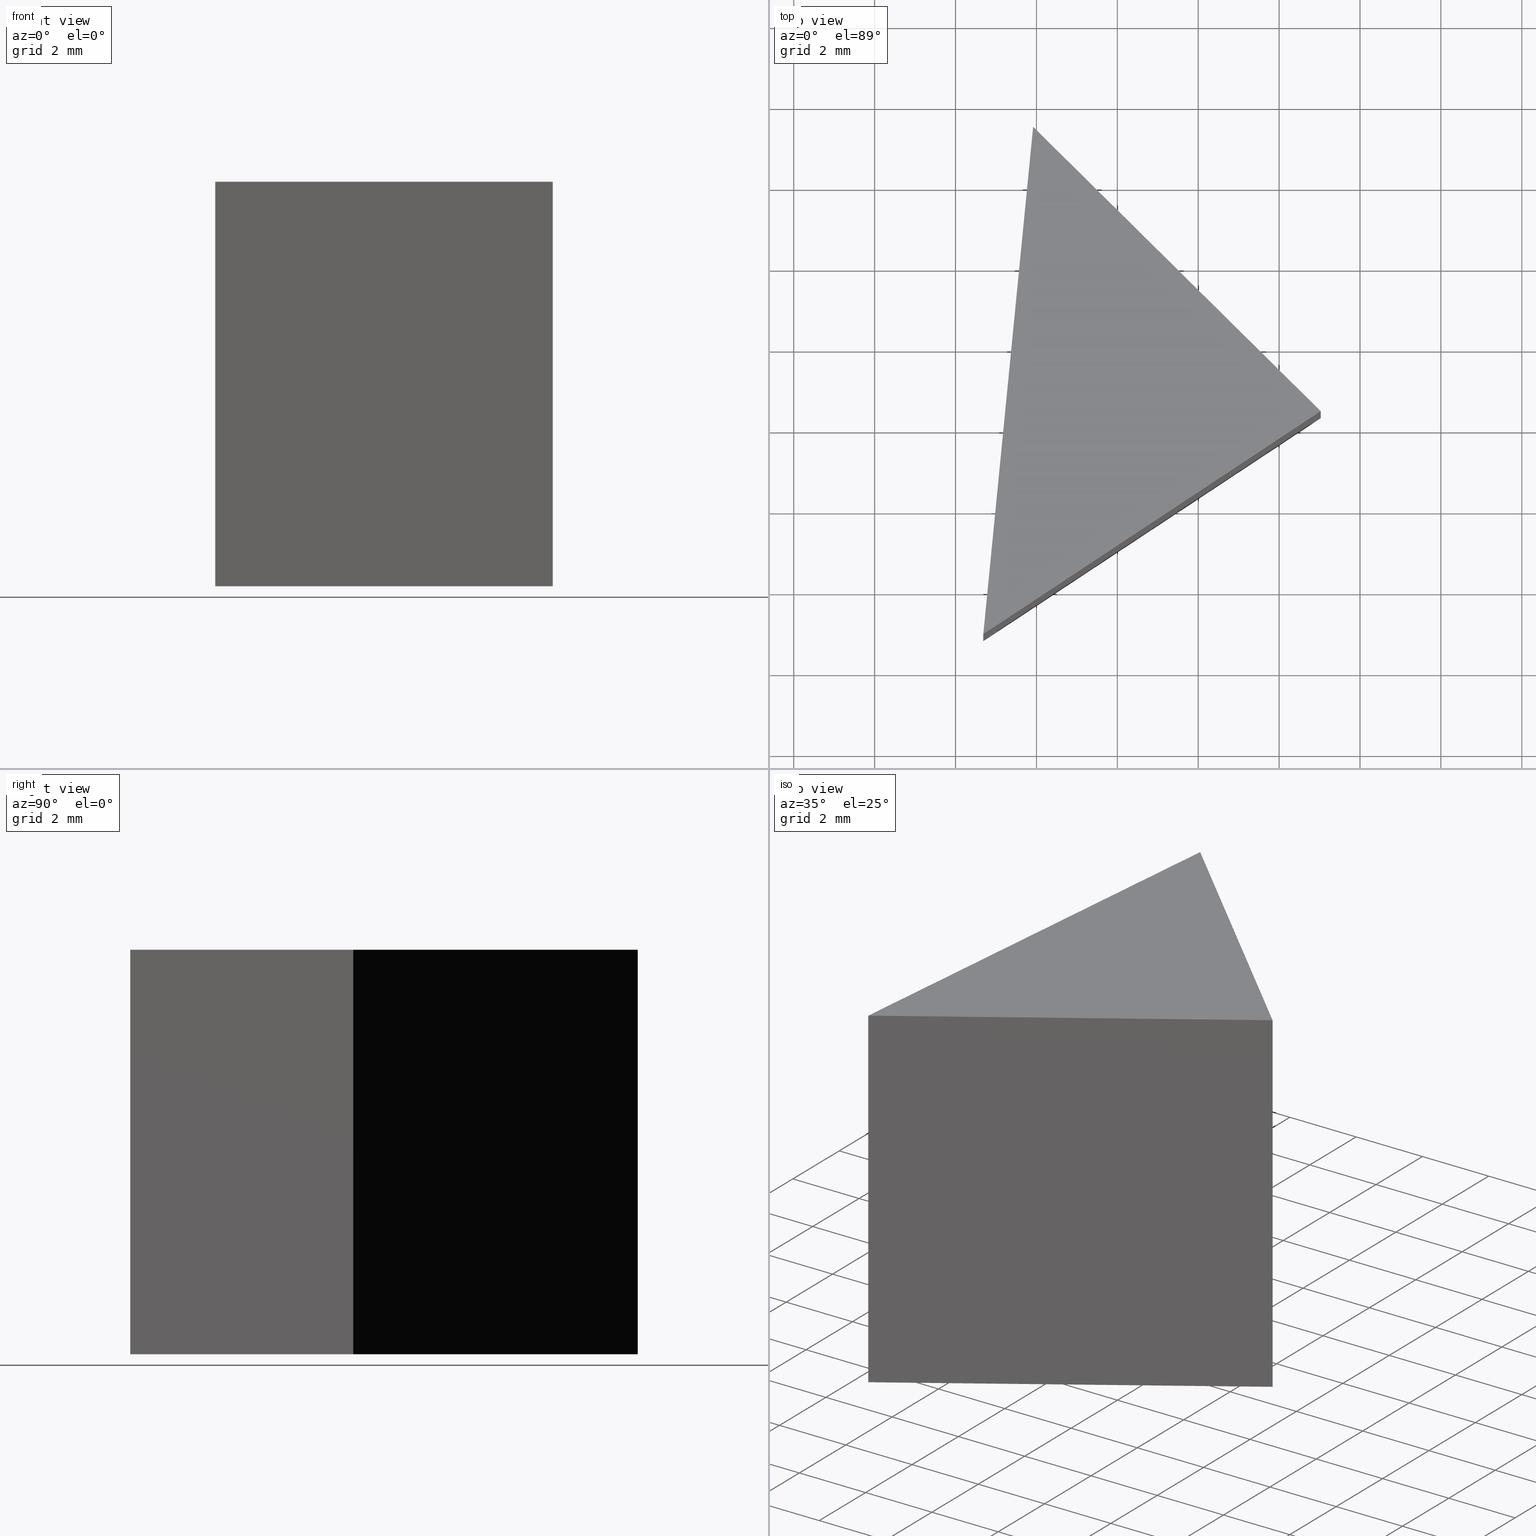
[diagram: canonical four-view strip — front | top / right | iso, engineering-drawing reading convention]
A machine part, canonical four-view strip (front | top / right | iso — engineering-drawing reading convention). The complete STEP part file that produces these views, byte-faithful:
ISO-10303-21;
HEADER;
FILE_DESCRIPTION (( 'STEP AP214' ),
    '1' );
FILE_NAME ('469001.STEP',
    '2019-08-23T02:08:35',
    ( 'user' ),
    ( '΢���й�' ),
    'SwSTEP 2.0',
    'SolidWorks 2016',
    '' );
FILE_SCHEMA (( 'AUTOMOTIVE_DESIGN' ));
ENDSEC;

DATA;
#1 = DIRECTION ( 'NONE',  ( 0.0000000000000000000, 0.0000000000000000000, 1.000000000000000000 ) ) ;
#2 = MECHANICAL_DESIGN_GEOMETRIC_PRESENTATION_REPRESENTATION (  '', ( #69 ), #75 ) ;
#3 = ORIENTED_EDGE ( 'NONE', *, *, #82, .T. ) ;
#4 = PRODUCT_DEFINITION ( 'δ֪', '', #72, #9 ) ;
#5 = EDGE_CURVE ( 'NONE', #114, #94, #169, .T. ) ;
#6 = CARTESIAN_POINT ( 'NONE',  ( 9.028570851696299500, 6.361486365058052400, 10.00000000000000000 ) ) ;
#7 = PLANE ( 'NONE',  #96 ) ;
#8 =( LENGTH_UNIT ( ) NAMED_UNIT ( * ) SI_UNIT ( .MILLI., .METRE. ) );
#9 = PRODUCT_DEFINITION_CONTEXT ( 'detailed design', #73, 'design' ) ;
#10 = CARTESIAN_POINT ( 'NONE',  ( 9.028570851696299500, 6.361486365058052400, 0.0000000000000000000 ) ) ;
#11 = DIRECTION ( 'NONE',  ( 0.09777970958415410600, 0.9952080829623716200, 0.0000000000000000000 ) ) ;
#12 = ORIENTED_EDGE ( 'NONE', *, *, #20, .F. ) ;
#13 = UNCERTAINTY_MEASURE_WITH_UNIT (LENGTH_MEASURE( 1.000000000000000100E-005 ), #80, 'distance_accuracy_value', 'NONE');
#14 = LINE ( 'NONE', #162, #147 ) ;
#15 = PRODUCT_RELATED_PRODUCT_CATEGORY ( 'part', '', ( #58 ) ) ;
#16 =( NAMED_UNIT ( * ) SI_UNIT ( $, .STERADIAN. ) SOLID_ANGLE_UNIT ( ) );
#17 = PRESENTATION_STYLE_ASSIGNMENT (( #122 ) ) ;
#18 =( NAMED_UNIT ( * ) PLANE_ANGLE_UNIT ( ) SI_UNIT ( $, .RADIAN. ) );
#19 = ORIENTED_EDGE ( 'NONE', *, *, #163, .T. ) ;
#20 = EDGE_CURVE ( 'NONE', #137, #47, #28, .T. ) ;
#21 = DIRECTION ( 'NONE',  ( -1.000000000000000000, 0.0000000000000000000, 0.0000000000000000000 ) ) ;
#22 = PRESENTATION_STYLE_ASSIGNMENT (( #88 ) ) ;
#23 = DIRECTION ( 'NONE',  ( 0.8342399877260263700, 0.5514015260034012000, -0.0000000000000000000 ) ) ;
#24 = CARTESIAN_POINT ( 'NONE',  ( 0.6861709744360347000, 0.8474711050240408800, 0.0000000000000000000 ) ) ;
#25 =( NAMED_UNIT ( * ) SI_UNIT ( $, .STERADIAN. ) SOLID_ANGLE_UNIT ( ) );
#26 = CARTESIAN_POINT ( 'NONE',  ( 9.028570851696299500, 6.361486365058052400, 10.00000000000000000 ) ) ;
#27 = EDGE_LOOP ( 'NONE', ( #31, #67, #12, #97 ) ) ;
#28 = LINE ( 'NONE', #118, #164 ) ;
#29 = ORIENTED_EDGE ( 'NONE', *, *, #82, .F. ) ;
#30 = FACE_OUTER_BOUND ( 'NONE', #161, .T. ) ;
#31 = ORIENTED_EDGE ( 'NONE', *, *, #5, .T. ) ;
#32 = PRESENTATION_LAYER_ASSIGNMENT (  '', '', ( #167 ) ) ;
#33 =( LENGTH_UNIT ( ) NAMED_UNIT ( * ) SI_UNIT ( .MILLI., .METRE. ) );
#34 = ORIENTED_EDGE ( 'NONE', *, *, #5, .F. ) ;
#35 = VECTOR ( 'NONE', #140, 1000.000000000000000 ) ;
#36 = PLANE ( 'NONE',  #111 ) ;
#37 = VECTOR ( 'NONE', #23, 1000.000000000000000 ) ;
#38 = CARTESIAN_POINT ( 'NONE',  ( 1.918842615621676000, 13.39368121511469800, 10.00000000000000000 ) ) ;
#39 = DIRECTION ( 'NONE',  ( -0.7109728236074625000, 0.7032194850056645600, 0.0000000000000000000 ) ) ;
#40 = CARTESIAN_POINT ( 'NONE',  ( 0.6861709744360347000, 0.8474711050240408800, 10.00000000000000000 ) ) ;
#41 = ORIENTED_EDGE ( 'NONE', *, *, #99, .F. ) ;
#42 = MECHANICAL_DESIGN_GEOMETRIC_PRESENTATION_REPRESENTATION (  '', ( #167 ), #120 ) ;
#43 = VECTOR ( 'NONE', #39, 999.9999999999998900 ) ;
#44 = ADVANCED_BREP_SHAPE_REPRESENTATION ( '469001', ( #107, #52 ), #133 ) ;
#45 = SURFACE_SIDE_STYLE ('',( #55 ) ) ;
#46 = AXIS2_PLACEMENT_3D ( 'NONE', #117, #125, #51 ) ;
#47 = VERTEX_POINT ( 'NONE', #62 ) ;
#48 = DIRECTION ( 'NONE',  ( -0.09777970958415410600, -0.9952080829623716200, -0.0000000000000000000 ) ) ;
#49 = DIRECTION ( 'NONE',  ( -0.0000000000000000000, -0.0000000000000000000, -1.000000000000000000 ) ) ;
#50 = ADVANCED_FACE ( 'NONE', ( #71 ), #7, .F. ) ;
#51 = DIRECTION ( 'NONE',  ( 0.7109728236074625000, -0.7032194850056645600, 0.0000000000000000000 ) ) ;
#52 = AXIS2_PLACEMENT_3D ( 'NONE', #105, #1, #83 ) ;
#53 = CARTESIAN_POINT ( 'NONE',  ( 1.918842615621676000, 13.39368121511469800, 0.0000000000000000000 ) ) ;
#54 = VECTOR ( 'NONE', #49, 1000.000000000000000 ) ;
#55 = SURFACE_STYLE_FILL_AREA ( #134 ) ;
#56 = SURFACE_STYLE_FILL_AREA ( #78 ) ;
#57 =( NAMED_UNIT ( * ) SI_UNIT ( $, .STERADIAN. ) SOLID_ANGLE_UNIT ( ) );
#58 = PRODUCT ( '469001', '469001', '', ( #151 ) ) ;
#59 = APPLICATION_CONTEXT ( 'automotive_design' ) ;
#60 = ORIENTED_EDGE ( 'NONE', *, *, #163, .F. ) ;
#61 = EDGE_LOOP ( 'NONE', ( #143, #34, #166 ) ) ;
#62 = CARTESIAN_POINT ( 'NONE',  ( 0.6861709744360347000, 0.8474711050240408800, 10.00000000000000000 ) ) ;
#63 = COLOUR_RGB ( '',1.000000000000000000, 1.000000000000000000, 1.000000000000000000 ) ;
#64 = ADVANCED_FACE ( 'NONE', ( #98 ), #124, .F. ) ;
#65 = CARTESIAN_POINT ( 'NONE',  ( 9.028570851696299500, 6.361486365058052400, 10.00000000000000000 ) ) ;
#66 = CARTESIAN_POINT ( 'NONE',  ( 0.0000000000000000000, 0.0000000000000000000, 0.0000000000000000000 ) ) ;
#67 = ORIENTED_EDGE ( 'NONE', *, *, #158, .F. ) ;
#68 = FILL_AREA_STYLE_COLOUR ( '', #89 ) ;
#69 = STYLED_ITEM ( 'NONE', ( #22 ), #107 ) ;
#70 = LINE ( 'NONE', #10, #35 ) ;
#71 = FACE_OUTER_BOUND ( 'NONE', #144, .T. ) ;
#72 = PRODUCT_DEFINITION_FORMATION_WITH_SPECIFIED_SOURCE ( '�κ�', '', #58, .NOT_KNOWN. ) ;
#73 = APPLICATION_CONTEXT ( 'automotive_design' ) ;
#74 = APPLICATION_PROTOCOL_DEFINITION ( 'draft international standard', 'automotive_design', 1998, #59 ) ;
#75 =( GEOMETRIC_REPRESENTATION_CONTEXT ( 3 ) GLOBAL_UNCERTAINTY_ASSIGNED_CONTEXT ( ( #153 ) ) GLOBAL_UNIT_ASSIGNED_CONTEXT ( ( #8, #103, #25 ) ) REPRESENTATION_CONTEXT ( 'NONE', 'WORKASPACE' ) );
#76 = DIRECTION ( 'NONE',  ( -0.09777970958415410600, -0.9952080829623716200, -0.0000000000000000000 ) ) ;
#77 = VECTOR ( 'NONE', #48, 999.9999999999998900 ) ;
#78 = FILL_AREA_STYLE ('',( #102 ) ) ;
#79 = CARTESIAN_POINT ( 'NONE',  ( 0.6861709744360347000, 0.8474711050240408800, 10.00000000000000000 ) ) ;
#80 =( LENGTH_UNIT ( ) NAMED_UNIT ( * ) SI_UNIT ( .MILLI., .METRE. ) );
#81 = EDGE_LOOP ( 'NONE', ( #131, #29, #41, #127 ) ) ;
#82 = EDGE_CURVE ( 'NONE', #129, #152, #92, .T. ) ;
#83 = DIRECTION ( 'NONE',  ( 1.000000000000000000, 0.0000000000000000000, 0.0000000000000000000 ) ) ;
#84 = PRESENTATION_LAYER_ASSIGNMENT (  '', '', ( #69 ) ) ;
#85 = UNCERTAINTY_MEASURE_WITH_UNIT (LENGTH_MEASURE( 1.000000000000000100E-005 ), #33, 'distance_accuracy_value', 'NONE');
#86 = VECTOR ( 'NONE', #128, 1000.000000000000000 ) ;
#87 = DIRECTION ( 'NONE',  ( -0.5514015260034012000, 0.8342399877260262600, 0.0000000000000000000 ) ) ;
#88 = SURFACE_STYLE_USAGE ( .BOTH. , #159 ) ;
#89 = COLOUR_RGB ( '',1.000000000000000000, 1.000000000000000000, 1.000000000000000000 ) ;
#90 = DIRECTION ( 'NONE',  ( -1.000000000000000000, 0.0000000000000000000, 0.0000000000000000000 ) ) ;
#91 = DIRECTION ( 'NONE',  ( 0.9952080829623716200, -0.09777970958415410600, 0.0000000000000000000 ) ) ;
#92 = LINE ( 'NONE', #65, #54 ) ;
#93 = FACE_OUTER_BOUND ( 'NONE', #61, .T. ) ;
#94 = VERTEX_POINT ( 'NONE', #157 ) ;
#95 = ORIENTED_EDGE ( 'NONE', *, *, #20, .T. ) ;
#96 = AXIS2_PLACEMENT_3D ( 'NONE', #155, #100, #21 ) ;
#97 = ORIENTED_EDGE ( 'NONE', *, *, #110, .T. ) ;
#98 = FACE_OUTER_BOUND ( 'NONE', #81, .T. ) ;
#99 = EDGE_CURVE ( 'NONE', #47, #129, #132, .T. ) ;
#100 = DIRECTION ( 'NONE',  ( 0.0000000000000000000, 0.0000000000000000000, -1.000000000000000000 ) ) ;
#101 = ADVANCED_FACE ( 'NONE', ( #30 ), #148, .F. ) ;
#102 = FILL_AREA_STYLE_COLOUR ( '', #63 ) ;
#103 =( NAMED_UNIT ( * ) PLANE_ANGLE_UNIT ( ) SI_UNIT ( $, .RADIAN. ) );
#104 = CARTESIAN_POINT ( 'NONE',  ( 1.918842615621676000, 13.39368121511469800, 10.00000000000000000 ) ) ;
#105 = CARTESIAN_POINT ( 'NONE',  ( 0.0000000000000000000, 0.0000000000000000000, 0.0000000000000000000 ) ) ;
#106 = SHAPE_DEFINITION_REPRESENTATION ( #165, #44 ) ;
#107 = MANIFOLD_SOLID_BREP ( '͹̨-����1', #146 ) ;
#108 = FACE_OUTER_BOUND ( 'NONE', #27, .T. ) ;
#109 = ORIENTED_EDGE ( 'NONE', *, *, #121, .T. ) ;
#110 = EDGE_CURVE ( 'NONE', #137, #114, #150, .T. ) ;
#111 = AXIS2_PLACEMENT_3D ( 'NONE', #66, #160, #90 ) ;
#112 = VECTOR ( 'NONE', #139, 1000.000000000000000 ) ;
#113 =( NAMED_UNIT ( * ) PLANE_ANGLE_UNIT ( ) SI_UNIT ( $, .RADIAN. ) );
#114 = VERTEX_POINT ( 'NONE', #53 ) ;
#115 = CARTESIAN_POINT ( 'NONE',  ( 9.028570851696299500, 6.361486365058052400, 10.00000000000000000 ) ) ;
#116 = ADVANCED_FACE ( 'NONE', ( #93 ), #36, .T. ) ;
#117 = CARTESIAN_POINT ( 'NONE',  ( 9.028570851696299500, 6.361486365058052400, 10.00000000000000000 ) ) ;
#118 = CARTESIAN_POINT ( 'NONE',  ( 0.6861709744360347000, 0.8474711050240408800, 10.00000000000000000 ) ) ;
#119 = CARTESIAN_POINT ( 'NONE',  ( 9.028570851696299500, 6.361486365058052400, 0.0000000000000000000 ) ) ;
#120 =( GEOMETRIC_REPRESENTATION_CONTEXT ( 3 ) GLOBAL_UNCERTAINTY_ASSIGNED_CONTEXT ( ( #85 ) ) GLOBAL_UNIT_ASSIGNED_CONTEXT ( ( #33, #113, #16 ) ) REPRESENTATION_CONTEXT ( 'NONE', 'WORKASPACE' ) );
#121 = EDGE_CURVE ( 'NONE', #152, #114, #136, .T. ) ;
#122 = SURFACE_STYLE_USAGE ( .BOTH. , #45 ) ;
#123 = AXIS2_PLACEMENT_3D ( 'NONE', #115, #87, #138 ) ;
#124 = PLANE ( 'NONE',  #123 ) ;
#125 = DIRECTION ( 'NONE',  ( -0.7032194850056645600, -0.7109728236074625000, 0.0000000000000000000 ) ) ;
#126 = CARTESIAN_POINT ( 'NONE',  ( 9.028570851696299500, 6.361486365058052400, 0.0000000000000000000 ) ) ;
#127 = ORIENTED_EDGE ( 'NONE', *, *, #158, .T. ) ;
#128 = DIRECTION ( 'NONE',  ( -0.0000000000000000000, -0.0000000000000000000, -1.000000000000000000 ) ) ;
#129 = VERTEX_POINT ( 'NONE', #26 ) ;
#130 = EDGE_CURVE ( 'NONE', #94, #152, #70, .T. ) ;
#131 = ORIENTED_EDGE ( 'NONE', *, *, #130, .T. ) ;
#132 = LINE ( 'NONE', #6, #37 ) ;
#133 =( GEOMETRIC_REPRESENTATION_CONTEXT ( 3 ) GLOBAL_UNCERTAINTY_ASSIGNED_CONTEXT ( ( #13 ) ) GLOBAL_UNIT_ASSIGNED_CONTEXT ( ( #80, #18, #57 ) ) REPRESENTATION_CONTEXT ( 'NONE', 'WORKASPACE' ) );
#134 = FILL_AREA_STYLE ('',( #68 ) ) ;
#135 = ORIENTED_EDGE ( 'NONE', *, *, #110, .F. ) ;
#136 = LINE ( 'NONE', #119, #43 ) ;
#137 = VERTEX_POINT ( 'NONE', #104 ) ;
#138 = DIRECTION ( 'NONE',  ( -0.8342399877260262600, -0.5514015260034012000, 0.0000000000000000000 ) ) ;
#139 = DIRECTION ( 'NONE',  ( -0.0000000000000000000, -0.0000000000000000000, -1.000000000000000000 ) ) ;
#140 = DIRECTION ( 'NONE',  ( 0.8342399877260263700, 0.5514015260034012000, -0.0000000000000000000 ) ) ;
#141 = DIRECTION ( 'NONE',  ( -0.7109728236074625000, 0.7032194850056645600, 0.0000000000000000000 ) ) ;
#142 = AXIS2_PLACEMENT_3D ( 'NONE', #79, #91, #11 ) ;
#143 = ORIENTED_EDGE ( 'NONE', *, *, #130, .F. ) ;
#144 = EDGE_LOOP ( 'NONE', ( #154, #19, #95 ) ) ;
#145 = APPLICATION_PROTOCOL_DEFINITION ( 'draft international standard', 'automotive_design', 1998, #73 ) ;
#146 = CLOSED_SHELL ( 'NONE', ( #64, #101, #156, #50, #116 ) ) ;
#147 = VECTOR ( 'NONE', #141, 999.9999999999998900 ) ;
#148 = PLANE ( 'NONE',  #46 ) ;
#149 = PLANE ( 'NONE',  #142 ) ;
#150 = LINE ( 'NONE', #38, #112 ) ;
#151 = PRODUCT_CONTEXT ( 'NONE', #59, 'mechanical' ) ;
#152 = VERTEX_POINT ( 'NONE', #126 ) ;
#153 = UNCERTAINTY_MEASURE_WITH_UNIT (LENGTH_MEASURE( 1.000000000000000100E-005 ), #8, 'distance_accuracy_value', 'NONE');
#154 = ORIENTED_EDGE ( 'NONE', *, *, #99, .T. ) ;
#155 = CARTESIAN_POINT ( 'NONE',  ( 0.0000000000000000000, 0.0000000000000000000, 10.00000000000000000 ) ) ;
#156 = ADVANCED_FACE ( 'NONE', ( #108 ), #149, .F. ) ;
#157 = CARTESIAN_POINT ( 'NONE',  ( 0.6861709744360347000, 0.8474711050240408800, 0.0000000000000000000 ) ) ;
#158 = EDGE_CURVE ( 'NONE', #47, #94, #168, .T. ) ;
#159 = SURFACE_SIDE_STYLE ('',( #56 ) ) ;
#160 = DIRECTION ( 'NONE',  ( 0.0000000000000000000, 0.0000000000000000000, -1.000000000000000000 ) ) ;
#161 = EDGE_LOOP ( 'NONE', ( #109, #135, #60, #3 ) ) ;
#162 = CARTESIAN_POINT ( 'NONE',  ( 9.028570851696299500, 6.361486365058052400, 10.00000000000000000 ) ) ;
#163 = EDGE_CURVE ( 'NONE', #129, #137, #14, .T. ) ;
#164 = VECTOR ( 'NONE', #76, 999.9999999999998900 ) ;
#165 = PRODUCT_DEFINITION_SHAPE ( 'NONE', 'NONE',  #4 ) ;
#166 = ORIENTED_EDGE ( 'NONE', *, *, #121, .F. ) ;
#167 = STYLED_ITEM ( 'NONE', ( #17 ), #44 ) ;
#168 = LINE ( 'NONE', #40, #86 ) ;
#169 = LINE ( 'NONE', #24, #77 ) ;
ENDSEC;
END-ISO-10303-21;
